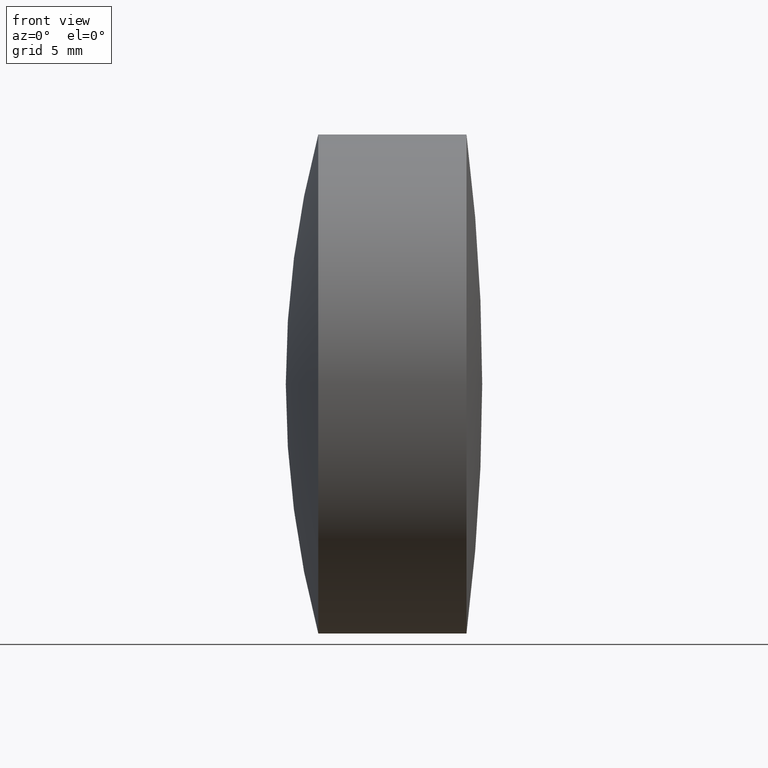
[diagram: clean part render]
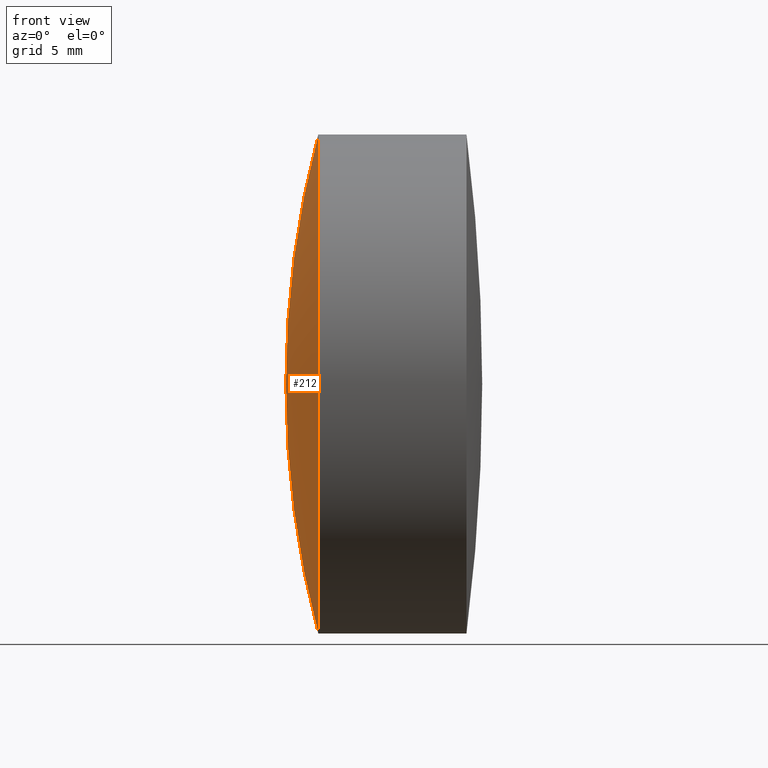
[diagram: same view with one face highlighted and labeled with its STEP entity id]
A machine part, front view. The second image highlights one B-rep face of the part: STEP entity #212.
In plain terms, the highlighted spherical surface has radius 49.6 mm.
Its self-contained STEP definition (entity closure, byte-faithful):
#4 = CARTESIAN_POINT ( 'NONE',  ( 289.1958458084194500, 0.0000000000000000000, -2.994211294255378400E-015 ) ) ;
#10 = ORIENTED_EDGE ( 'NONE', *, *, #11, .F. ) ;
#11 = EDGE_CURVE ( 'NONE', #299, #88, #284, .T. ) ;
#13 = DIRECTION ( 'NONE',  ( 0.0000000000000000000, 0.0000000000000000000, -1.000000000000000000 ) ) ;
#14 = DIRECTION ( 'NONE',  ( 0.0000000000000000000, -1.224646799147353200E-016, 1.000000000000000000 ) ) ;
#17 = CARTESIAN_POINT ( 'NONE',  ( 239.5958458084194800, 0.0000000000000000000, 4.291276763005584700E-017 ) ) ;
#60 = DIRECTION ( 'NONE',  ( 0.0000000000000000000, -1.000000000000000000, 0.0000000000000000000 ) ) ;
#64 = CIRCLE ( 'NONE', #311, 49.59999999999997300 ) ;
#83 = VERTEX_POINT ( 'NONE', #223 ) ;
#84 = CARTESIAN_POINT ( 'NONE',  ( 289.1958458084194500, 0.0000000000000000000, -2.994211294255378400E-015 ) ) ;
#85 = DIRECTION ( 'NONE',  ( -0.0000000000000000000, 1.000000000000000000, 1.224646799147353200E-016 ) ) ;
#88 = VERTEX_POINT ( 'NONE', #17 ) ;
#107 = AXIS2_PLACEMENT_3D ( 'NONE', #84, #85, #14 ) ;
#130 = CARTESIAN_POINT ( 'NONE',  ( 241.2493130870641400, 1.555301434917139200E-015, -12.70000000000001000 ) ) ;
#149 = EDGE_CURVE ( 'NONE', #83, #88, #64, .T. ) ;
#152 = CARTESIAN_POINT ( 'NONE',  ( 289.1958458084194500, 0.0000000000000000000, -2.994211294255378400E-015 ) ) ;
#158 = DIRECTION ( 'NONE',  ( 0.0000000000000000000, 0.0000000000000000000, 1.000000000000000000 ) ) ;
#172 = AXIS2_PLACEMENT_3D ( 'NONE', #227, #236, #221 ) ;
#180 = SPHERICAL_SURFACE ( 'NONE', #184, 49.59999999999997300 ) ;
#184 = AXIS2_PLACEMENT_3D ( 'NONE', #152, #185, #158 ) ;
#185 = DIRECTION ( 'NONE',  ( 0.0000000000000000000, 1.000000000000000000, 0.0000000000000000000 ) ) ;
#210 = EDGE_LOOP ( 'NONE', ( #10, #255, #308 ) ) ;
#212 = ADVANCED_FACE ( 'NONE', ( #342 ), #180, .T. ) ;
#221 = DIRECTION ( 'NONE',  ( 0.0000000000000000000, 0.0000000000000000000, 1.000000000000000000 ) ) ;
#223 = CARTESIAN_POINT ( 'NONE',  ( 241.2493130870641400, 0.0000000000000000000, 12.70000000000000600 ) ) ;
#225 = EDGE_CURVE ( 'NONE', #299, #83, #275, .T. ) ;
#227 = CARTESIAN_POINT ( 'NONE',  ( 241.2493130870641400, 0.0000000000000000000, 0.0000000000000000000 ) ) ;
#236 = DIRECTION ( 'NONE',  ( -1.000000000000000000, -0.0000000000000000000, -0.0000000000000000000 ) ) ;
#255 = ORIENTED_EDGE ( 'NONE', *, *, #225, .T. ) ;
#275 = CIRCLE ( 'NONE', #172, 12.69999999999999600 ) ;
#284 = CIRCLE ( 'NONE', #107, 49.59999999999997300 ) ;
#299 = VERTEX_POINT ( 'NONE', #130 ) ;
#308 = ORIENTED_EDGE ( 'NONE', *, *, #149, .T. ) ;
#311 = AXIS2_PLACEMENT_3D ( 'NONE', #4, #60, #13 ) ;
#342 = FACE_OUTER_BOUND ( 'NONE', #210, .T. ) ;